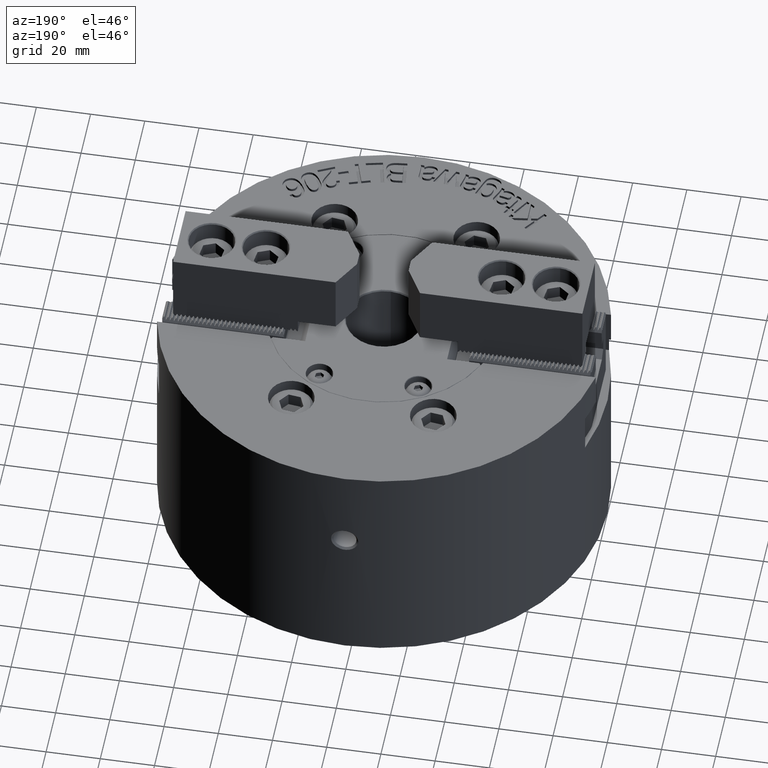
[diagram: clean part render]
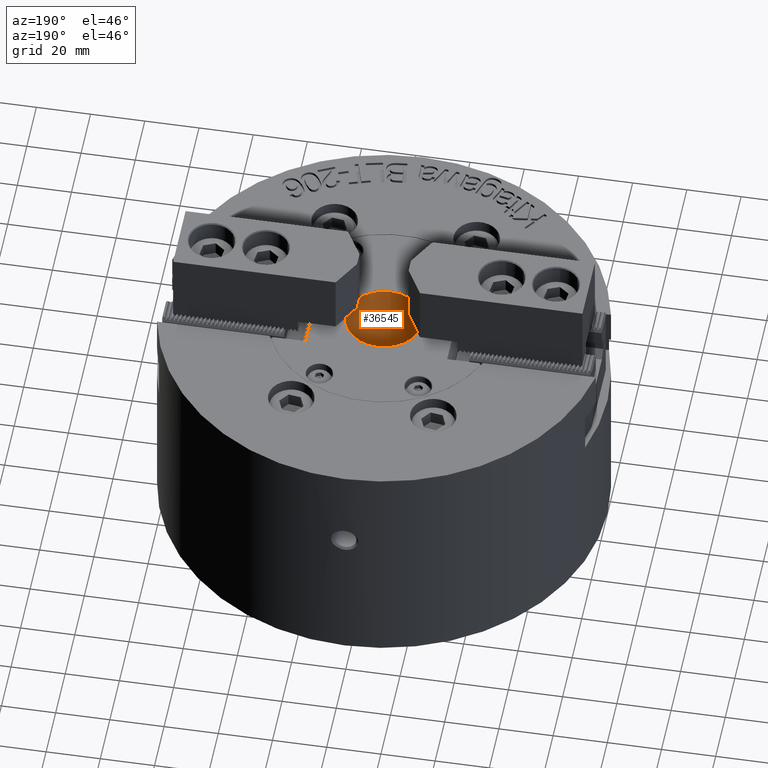
[diagram: same view with one face highlighted and labeled with its STEP entity id]
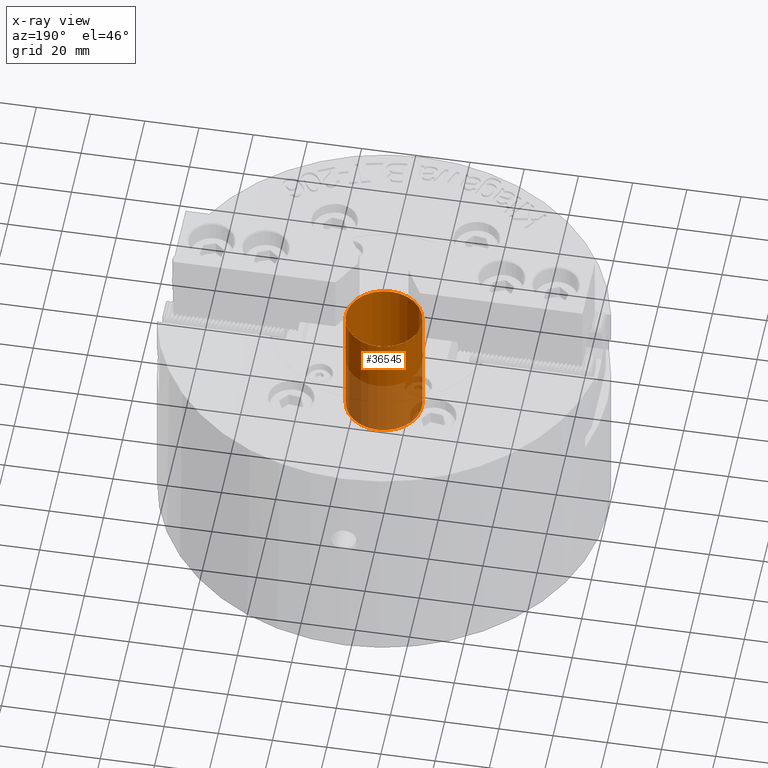
[diagram: x-ray of the same camera — body ghosted, the highlighted face saturated]
A machine part, auxiliary view. The second image highlights one B-rep face of the part: STEP entity #36545.
The next image is the same camera in x-ray: the body ghosted, the highlighted face saturated — about 34% of this face is hidden behind the body in this view.
In plain terms, the highlighted cylindrical surface (bore or boss wall) has radius 14 mm, axis along (0, 0, -1).
Its self-contained STEP definition (entity closure, byte-faithful):
#904=CYLINDRICAL_SURFACE('',#38970,14.);
#1438=CIRCLE('',#38971,14.);
#1439=CIRCLE('',#38972,14.);
#11706=ORIENTED_EDGE('',*,*,#17425,.T.);
#11707=ORIENTED_EDGE('',*,*,#17426,.T.);
#17425=EDGE_CURVE('',#20976,#20976,#1438,.T.);
#17426=EDGE_CURVE('',#20977,#20977,#1439,.T.);
#20976=VERTEX_POINT('',#61088);
#20977=VERTEX_POINT('',#61090);
#31616=EDGE_LOOP('',(#11706));
#31617=EDGE_LOOP('',(#11707));
#33576=FACE_BOUND('',#31616,.T.);
#33577=FACE_BOUND('',#31617,.T.);
#36545=ADVANCED_FACE('',(#33576,#33577),#904,.F.);
#38970=AXIS2_PLACEMENT_3D('',#61086,#47954,#47955);
#38971=AXIS2_PLACEMENT_3D('',#61087,#47956,#47957);
#38972=AXIS2_PLACEMENT_3D('',#61089,#47958,#47959);
#47954=DIRECTION('',(0.,0.,-1.));
#47955=DIRECTION('',(0.,-1.,0.));
#47956=DIRECTION('',(0.,0.,-1.));
#47957=DIRECTION('',(0.,-1.,0.));
#47958=DIRECTION('',(0.,0.,1.));
#47959=DIRECTION('',(0.,1.,0.));
#61086=CARTESIAN_POINT('',(-2.81148802155906E-14,0.,-45.));
#61087=CARTESIAN_POINT('',(-2.81148802155906E-14,0.,-44.1339745962156));
#61088=CARTESIAN_POINT('',(-2.81148802155906E-14,-14.,-44.1339745962156));
#61089=CARTESIAN_POINT('',(-2.81148802155906E-14,0.,-0.399999999999998));
#61090=CARTESIAN_POINT('',(-2.81148802155906E-14,14.,-0.399999999999998));